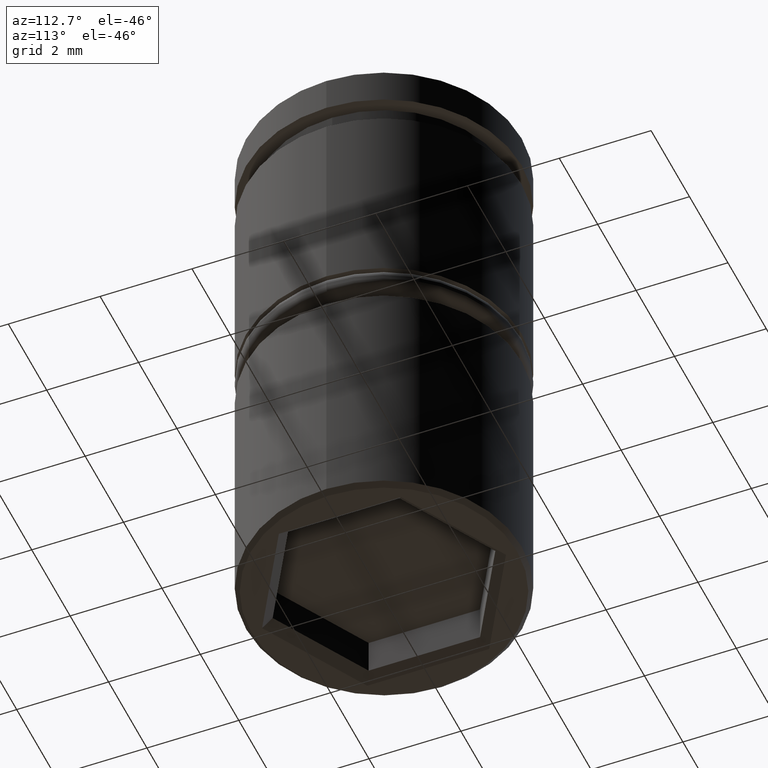
[diagram: clean part render]
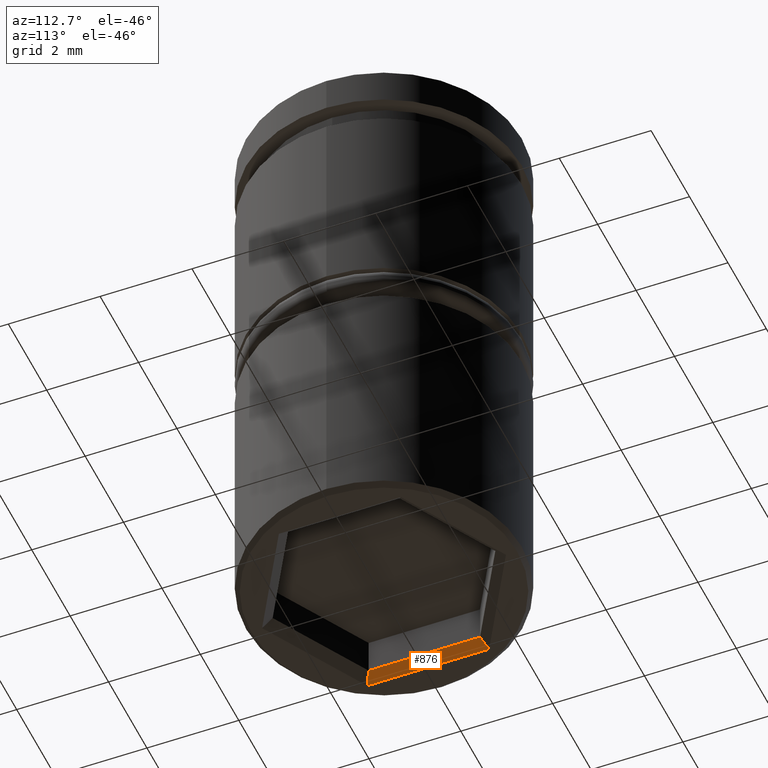
[diagram: same view with one face highlighted and labeled with its STEP entity id]
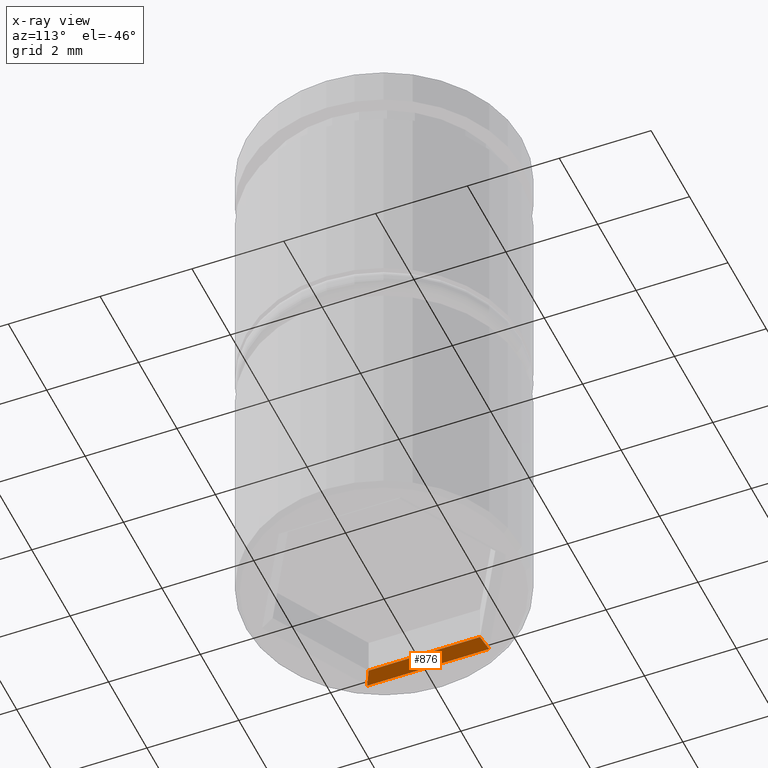
[diagram: x-ray of the same camera — body ghosted, the highlighted face saturated]
A machine part, auxiliary view. The second image highlights one B-rep face of the part: STEP entity #876.
The next image is the same camera in x-ray: the body ghosted, the highlighted face saturated — about 0% of this face is hidden behind the body in this view.
In plain terms, the highlighted planar face has unit normal (0.7071, 0, -0.7071).
Its self-contained STEP definition (entity closure, byte-faithful):
#7 = DIRECTION ( 'NONE',  ( 0.6546536707079771977, -0.3779644730092266980, 0.6546536707079771977 ) ) ;
#46 = AXIS2_PLACEMENT_3D ( 'NONE', #1096, #480, #832 ) ;
#53 = EDGE_CURVE ( 'NONE', #1136, #316, #780, .T. ) ;
#109 = PLANE ( 'NONE',  #46 ) ;
#112 = EDGE_LOOP ( 'NONE', ( #415, #418, #748, #987 ) ) ;
#305 = LINE ( 'NONE', #1024, #689 ) ;
#316 = VERTEX_POINT ( 'NONE', #1060 ) ;
#329 = CARTESIAN_POINT ( 'NONE',  ( -1.499999999999997335, -0.8660254037844378194, -11.19999999999999929 ) ) ;
#331 = LINE ( 'NONE', #409, #841 ) ;
#409 = CARTESIAN_POINT ( 'NONE',  ( -2.099999999999996980, 1.212435565298212392, -11.79999999999999893 ) ) ;
#415 = ORIENTED_EDGE ( 'NONE', *, *, #858, .T. ) ;
#418 = ORIENTED_EDGE ( 'NONE', *, *, #562, .F. ) ;
#460 = LINE ( 'NONE', #901, #765 ) ;
#480 = DIRECTION ( 'NONE',  ( 0.7071067811865475727, 0.000000000000000000, -0.7071067811865475727 ) ) ;
#546 = CARTESIAN_POINT ( 'NONE',  ( -2.299999999999997158, -1.327905619136137805, -12.00000000000000000 ) ) ;
#562 = EDGE_CURVE ( 'NONE', #316, #933, #331, .T. ) ;
#587 = DIRECTION ( 'NONE',  ( 0.000000000000000000, -1.000000000000000000, 0.000000000000000000 ) ) ;
#628 = VECTOR ( 'NONE', #703, 1000.000000000000000 ) ;
#689 = VECTOR ( 'NONE', #587, 1000.000000000000000 ) ;
#703 = DIRECTION ( 'NONE',  ( 0.6546536707079771977, 0.3779644730092270866, 0.6546536707079771977 ) ) ;
#748 = ORIENTED_EDGE ( 'NONE', *, *, #53, .F. ) ;
#752 = DIRECTION ( 'NONE',  ( 0.000000000000000000, 1.000000000000000000, 0.000000000000000000 ) ) ;
#765 = VECTOR ( 'NONE', #7, 1000.000000000000114 ) ;
#780 = LINE ( 'NONE', #329, #628 ) ;
#832 = DIRECTION ( 'NONE',  ( 0.000000000000000000, -1.000000000000000000, 0.000000000000000000 ) ) ;
#838 = CARTESIAN_POINT ( 'NONE',  ( -2.099999999999996980, 1.212435565298212392, -11.79999999999999893 ) ) ;
#841 = VECTOR ( 'NONE', #752, 1000.000000000000000 ) ;
#858 = EDGE_CURVE ( 'NONE', #982, #933, #460, .T. ) ;
#876 = ADVANCED_FACE ( 'NONE', ( #1179 ), #109, .T. ) ;
#901 = CARTESIAN_POINT ( 'NONE',  ( -1.499999999999998446, 0.8660254037844378194, -11.20000000000000107 ) ) ;
#933 = VERTEX_POINT ( 'NONE', #838 ) ;
#982 = VERTEX_POINT ( 'NONE', #1138 ) ;
#987 = ORIENTED_EDGE ( 'NONE', *, *, #989, .F. ) ;
#989 = EDGE_CURVE ( 'NONE', #982, #1136, #305, .T. ) ;
#1024 = CARTESIAN_POINT ( 'NONE',  ( -2.299999999999997158, -1.212435565298212614, -12.00000000000000000 ) ) ;
#1060 = CARTESIAN_POINT ( 'NONE',  ( -2.099999999999996980, -1.212435565298212614, -11.79999999999999893 ) ) ;
#1096 = CARTESIAN_POINT ( 'NONE',  ( -2.099999999999996980, -1.212435565298212614, -11.79999999999999893 ) ) ;
#1136 = VERTEX_POINT ( 'NONE', #546 ) ;
#1138 = CARTESIAN_POINT ( 'NONE',  ( -2.299999999999997158, 1.327905619136137583, -12.00000000000000000 ) ) ;
#1179 = FACE_OUTER_BOUND ( 'NONE', #112, .T. ) ;